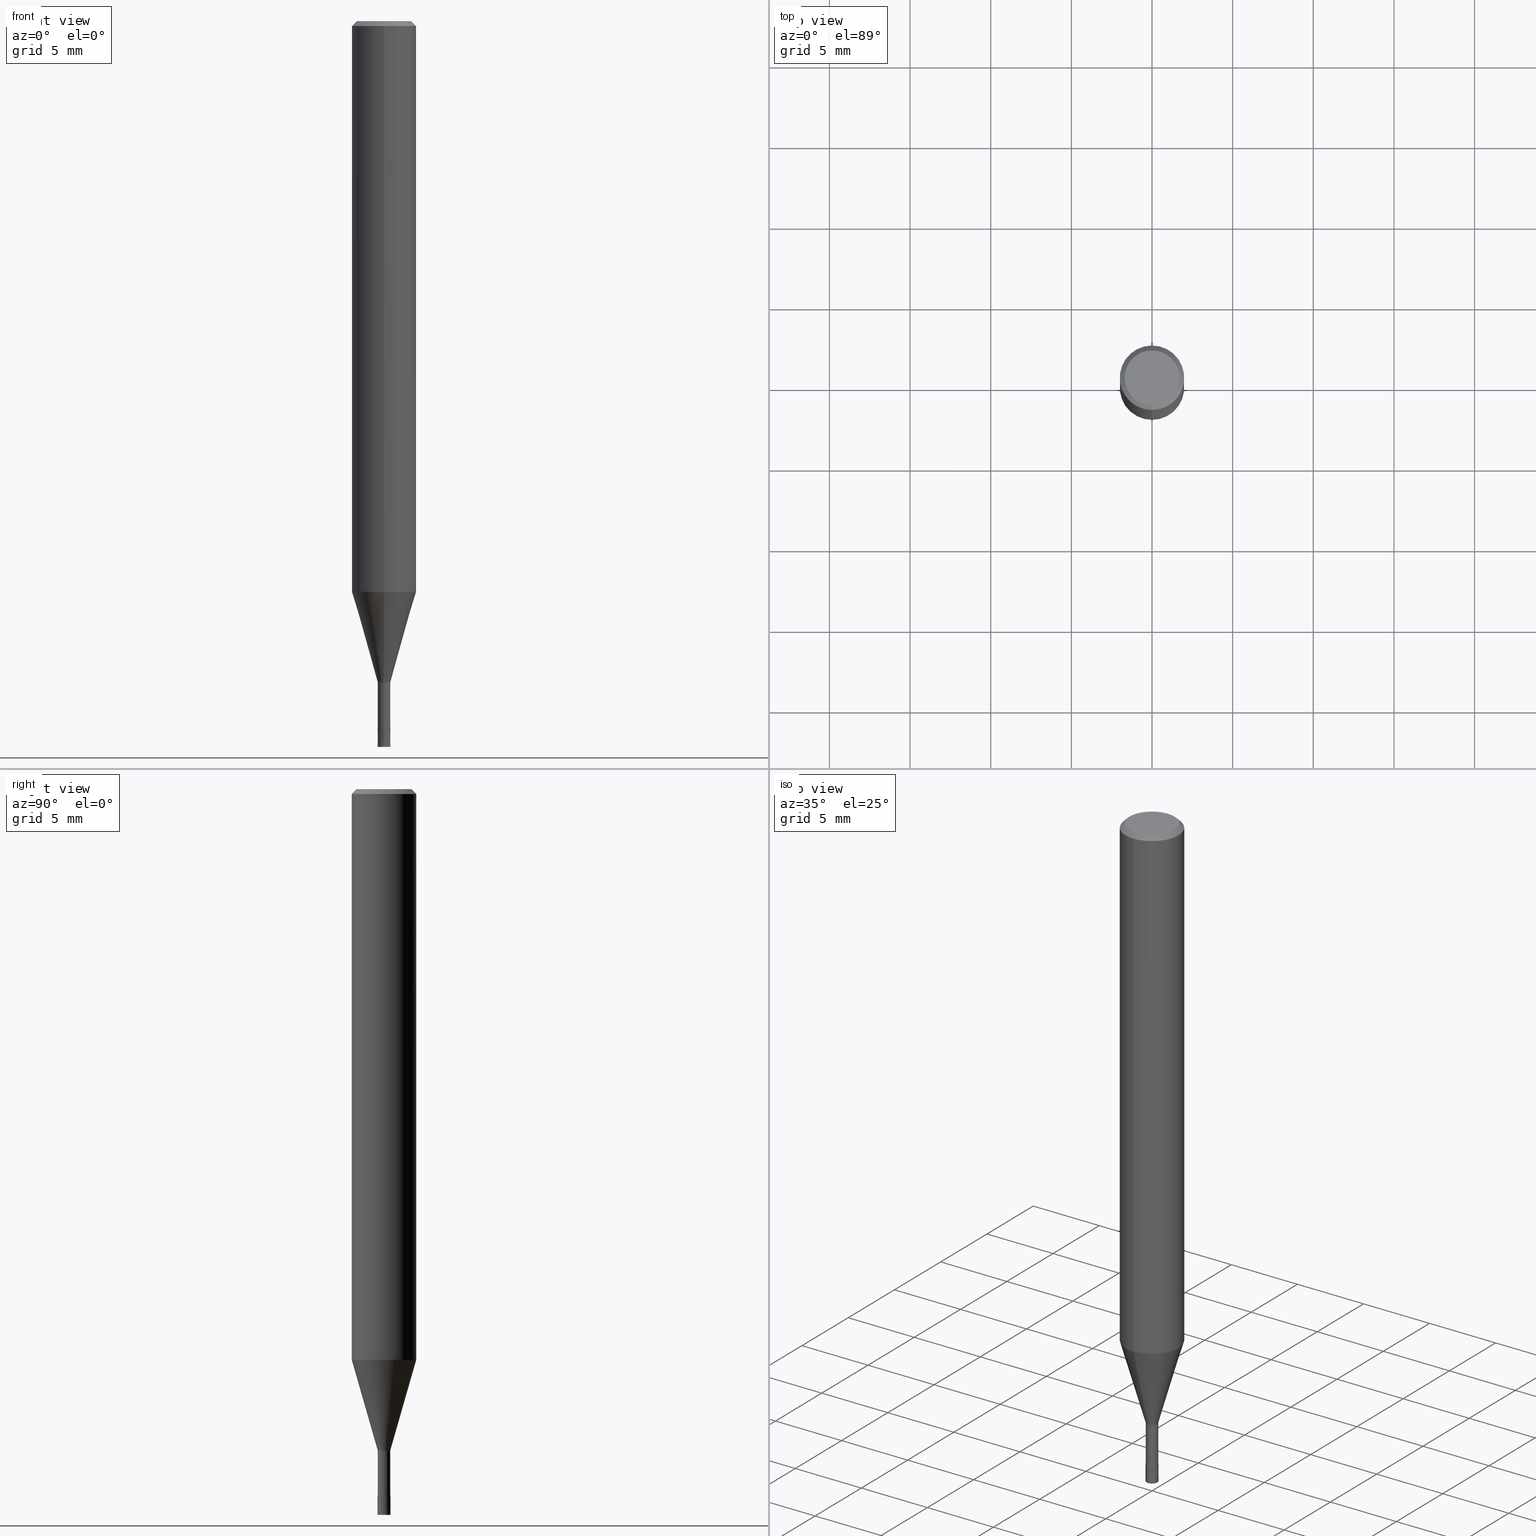
[diagram: canonical four-view strip — front | top / right | iso, engineering-drawing reading convention]
A machine part, canonical four-view strip (front | top / right | iso — engineering-drawing reading convention). The complete STEP part file that produces these views, byte-faithful:
ISO-10303-21;
HEADER;
FILE_DESCRIPTION(('no description'),'unknown implementation level');
FILE_NAME('HLS2008-040-Huellk.stp','  ',('CIMSOURCE GmbH'),('CADClick - KiM GmbH - www.kimweb.de'),'unknown preprocess','ACIS','unknown authorization');
FILE_SCHEMA(('automotive_design'));
ENDSEC;
DATA;
#1=MECHANICAL_DESIGN_GEOMETRIC_PRESENTATION_REPRESENTATION(' ',(#14,#15,#16,#17,#18,#19,#20,#21,#22,#23,#24,#25,#26,#27,#28,#29,#30,#31,#32,#33,#34,#35,#36,#37,#38,#39,#40,#41,#42,#43,#44,#45,#46,#47,#48,#49,#50,#51,#52,#53,#54,#55,#56,#57,#58,#59,#60,#61,#62,#63,#64,#65,#66,#67,#68,#69,#70,#71,#72),#10);
#2=PRODUCT_DEFINITION_CONTEXT('',#73,'design');
#3=APPLICATION_PROTOCOL_DEFINITION('INTERNATIONAL STANDARD','automotive_design',1994,#73);
#4=PRODUCT_CATEGORY_RELATIONSHIP('NONE','NONE',#74,#75);
#5=SHAPE_DEFINITION_REPRESENTATION(#76,#77);
#6=PRODUCT_DEFINITION_CONTEXT('',#78,'design');
#7=APPLICATION_PROTOCOL_DEFINITION('INTERNATIONAL STANDARD','automotive_design',1994,#78);
#8=PRODUCT_CATEGORY_RELATIONSHIP('NONE','NONE',#79,#80);
#9=SHAPE_DEFINITION_REPRESENTATION(#81,#82);
#10= (GEOMETRIC_REPRESENTATION_CONTEXT(3)GLOBAL_UNCERTAINTY_ASSIGNED_CONTEXT((#85))GLOBAL_UNIT_ASSIGNED_CONTEXT((#87,#88,#89))REPRESENTATION_CONTEXT('NONE','WORKSPACE'));
#14=STYLED_ITEM('',(#91),#92);
#15=STYLED_ITEM('',(#93),#94);
#16=STYLED_ITEM('',(#95),#96);
#17=STYLED_ITEM('',(#97),#98);
#18=STYLED_ITEM('',(#99),#100);
#19=STYLED_ITEM('',(#101),#102);
#20=STYLED_ITEM('',(#103),#104);
#21=STYLED_ITEM('',(#105),#106);
#22=STYLED_ITEM('',(#107),#108);
#23=STYLED_ITEM('',(#109),#110);
#24=STYLED_ITEM('',(#111),#112);
#25=STYLED_ITEM('',(#113),#114);
#26=STYLED_ITEM('',(#115),#116);
#27=STYLED_ITEM('',(#117),#118);
#28=STYLED_ITEM('',(#119),#120);
#29=STYLED_ITEM('',(#121),#122);
#30=STYLED_ITEM('',(#123),#124);
#31=STYLED_ITEM('',(#125),#126);
#32=STYLED_ITEM('',(#127),#128);
#33=STYLED_ITEM('',(#129),#130);
#34=STYLED_ITEM('',(#131),#132);
#35=STYLED_ITEM('',(#133),#134);
#36=STYLED_ITEM('',(#135),#136);
#37=STYLED_ITEM('',(#137),#138);
#38=STYLED_ITEM('',(#139),#140);
#39=STYLED_ITEM('',(#141),#142);
#40=STYLED_ITEM('',(#143),#144);
#41=STYLED_ITEM('',(#145),#146);
#42=STYLED_ITEM('',(#147),#148);
#43=STYLED_ITEM('',(#149),#150);
#44=STYLED_ITEM('',(#151),#152);
#45=STYLED_ITEM('',(#153),#154);
#46=STYLED_ITEM('',(#155),#156);
#47=STYLED_ITEM('',(#157),#158);
#48=STYLED_ITEM('',(#159),#160);
#49=STYLED_ITEM('',(#161),#162);
#50=STYLED_ITEM('',(#163),#164);
#51=STYLED_ITEM('',(#165),#166);
#52=STYLED_ITEM('',(#167),#168);
#53=STYLED_ITEM('',(#169),#170);
#54=STYLED_ITEM('',(#171),#172);
#55=STYLED_ITEM('',(#173),#174);
#56=STYLED_ITEM('',(#175),#176);
#57=STYLED_ITEM('',(#177),#178);
#58=STYLED_ITEM('',(#179),#180);
#59=STYLED_ITEM('',(#181),#182);
#60=STYLED_ITEM('',(#183),#184);
#61=STYLED_ITEM('',(#185),#186);
#62=STYLED_ITEM('',(#187),#188);
#63=STYLED_ITEM('',(#189),#190);
#64=STYLED_ITEM('',(#191),#192);
#65=STYLED_ITEM('',(#193),#194);
#66=STYLED_ITEM('',(#195),#196);
#67=STYLED_ITEM('',(#197),#198);
#68=STYLED_ITEM('',(#199),#200);
#69=STYLED_ITEM('',(#201),#202);
#70=STYLED_ITEM('',(#203),#204);
#71=STYLED_ITEM('',(#205),#206);
#72=STYLED_ITEM('',(#207),#208);
#73=APPLICATION_CONTEXT(' ');
#74=PRODUCT_CATEGORY('part','NONE');
#75=PRODUCT_RELATED_PRODUCT_CATEGORY('detail',' ',(#209));
#76=PRODUCT_DEFINITION_SHAPE('NONE','NONE',#210);
#77=ADVANCED_BREP_SHAPE_REPRESENTATION('1',(#130,#211),#10);
#78=APPLICATION_CONTEXT(' ');
#79=PRODUCT_CATEGORY('part','NONE');
#80=PRODUCT_RELATED_PRODUCT_CATEGORY('detail',' ',(#212));
#81=PRODUCT_DEFINITION_SHAPE('NONE','NONE',#213);
#82=ADVANCED_BREP_SHAPE_REPRESENTATION('2',(#160,#214),#10);
#85=UNCERTAINTY_MEASURE_WITH_UNIT(LENGTH_MEASURE(1.0E-006),#87,'','');
#87= (CONVERSION_BASED_UNIT('MILLIMETRE',#217)LENGTH_UNIT()NAMED_UNIT(#220));
#88= (NAMED_UNIT(#222)PLANE_ANGLE_UNIT()SI_UNIT($,.RADIAN.));
#89= (NAMED_UNIT(#222)SOLID_ANGLE_UNIT()SI_UNIT($,.STERADIAN.));
#91=PRESENTATION_STYLE_ASSIGNMENT((#228));
#92=EDGE_CURVE('',#194,#108,#229,.T.);
#93=PRESENTATION_STYLE_ASSIGNMENT((#230));
#94=VERTEX_POINT('',#231);
#95=PRESENTATION_STYLE_ASSIGNMENT((#232));
#96=EDGE_CURVE('',#164,#134,#233,.T.);
#97=PRESENTATION_STYLE_ASSIGNMENT((#234));
#98=ADVANCED_FACE('',(#235),#236,.T.);
#99=PRESENTATION_STYLE_ASSIGNMENT((#237));
#100=ADVANCED_FACE('',(#238),#239,.T.);
#101=PRESENTATION_STYLE_ASSIGNMENT((#240));
#102=VERTEX_POINT('',#241);
#103=PRESENTATION_STYLE_ASSIGNMENT((#242));
#104=VERTEX_POINT('',#243);
#105=PRESENTATION_STYLE_ASSIGNMENT((#244));
#106=EDGE_CURVE('',#112,#94,#245,.T.);
#107=PRESENTATION_STYLE_ASSIGNMENT((#246));
#108=VERTEX_POINT('',#247);
#109=PRESENTATION_STYLE_ASSIGNMENT((#248));
#110=ADVANCED_FACE('',(#249),#250,.T.);
#111=PRESENTATION_STYLE_ASSIGNMENT((#251));
#112=VERTEX_POINT('',#252);
#113=PRESENTATION_STYLE_ASSIGNMENT((#253));
#114=EDGE_CURVE('',#132,#146,#254,.T.);
#115=PRESENTATION_STYLE_ASSIGNMENT((#255));
#116=ADVANCED_FACE('',(#256),#257,.T.);
#117=PRESENTATION_STYLE_ASSIGNMENT((#258));
#118=EDGE_CURVE('',#166,#182,#259,.T.);
#119=PRESENTATION_STYLE_ASSIGNMENT((#260));
#120=EDGE_CURVE('',#94,#134,#261,.T.);
#121=PRESENTATION_STYLE_ASSIGNMENT((#262));
#122=ADVANCED_FACE('',(#263),#264,.T.);
#123=PRESENTATION_STYLE_ASSIGNMENT((#265));
#124=ADVANCED_FACE('',(#266),#267,.T.);
#125=PRESENTATION_STYLE_ASSIGNMENT((#268));
#126=EDGE_CURVE('',#102,#108,#269,.T.);
#127=PRESENTATION_STYLE_ASSIGNMENT((#270));
#128=ADVANCED_FACE('',(#271),#272,.T.);
#129=PRESENTATION_STYLE_ASSIGNMENT((#273));
#130=MANIFOLD_SOLID_BREP('1',#274);
#131=PRESENTATION_STYLE_ASSIGNMENT((#275));
#132=VERTEX_POINT('',#276);
#133=PRESENTATION_STYLE_ASSIGNMENT((#277));
#134=VERTEX_POINT('',#278);
#135=PRESENTATION_STYLE_ASSIGNMENT((#279));
#136=EDGE_CURVE('',#94,#112,#280,.T.);
#137=PRESENTATION_STYLE_ASSIGNMENT((#281));
#138=VERTEX_POINT('',#282);
#139=PRESENTATION_STYLE_ASSIGNMENT((#283));
#140=EDGE_CURVE('',#166,#102,#284,.T.);
#141=PRESENTATION_STYLE_ASSIGNMENT((#285));
#142=VERTEX_POINT('',#286);
#143=PRESENTATION_STYLE_ASSIGNMENT((#287));
#144=ADVANCED_FACE('',(#288),#289,.T.);
#145=PRESENTATION_STYLE_ASSIGNMENT((#290));
#146=VERTEX_POINT('',#291);
#147=PRESENTATION_STYLE_ASSIGNMENT((#292));
#148=EDGE_CURVE('',#204,#146,#293,.T.);
#149=PRESENTATION_STYLE_ASSIGNMENT((#294));
#150=EDGE_CURVE('',#194,#104,#295,.T.);
#151=PRESENTATION_STYLE_ASSIGNMENT((#296));
#152=ADVANCED_FACE('',(#297,#298),#299,.T.);
#153=PRESENTATION_STYLE_ASSIGNMENT((#300));
#154=ADVANCED_FACE('',(#301),#302,.T.);
#155=PRESENTATION_STYLE_ASSIGNMENT((#303));
#156=EDGE_CURVE('',#134,#164,#304,.T.);
#157=PRESENTATION_STYLE_ASSIGNMENT((#305));
#158=ADVANCED_FACE('',(#306),#307,.T.);
#159=PRESENTATION_STYLE_ASSIGNMENT((#308));
#160=MANIFOLD_SOLID_BREP('2',#309);
#161=PRESENTATION_STYLE_ASSIGNMENT((#310));
#162=EDGE_CURVE('',#200,#132,#311,.T.);
#163=PRESENTATION_STYLE_ASSIGNMENT((#312));
#164=VERTEX_POINT('',#313);
#165=PRESENTATION_STYLE_ASSIGNMENT((#314));
#166=VERTEX_POINT('',#315);
#167=PRESENTATION_STYLE_ASSIGNMENT((#316));
#168=EDGE_CURVE('',#108,#194,#317,.T.);
#169=PRESENTATION_STYLE_ASSIGNMENT((#318));
#170=ADVANCED_FACE('',(#319),#320,.T.);
#171=PRESENTATION_STYLE_ASSIGNMENT((#321));
#172=EDGE_CURVE('',#138,#142,#322,.T.);
#173=PRESENTATION_STYLE_ASSIGNMENT((#323));
#174=EDGE_CURVE('',#146,#204,#324,.T.);
#175=PRESENTATION_STYLE_ASSIGNMENT((#325));
#176=EDGE_CURVE('',#102,#104,#326,.T.);
#177=PRESENTATION_STYLE_ASSIGNMENT((#327));
#178=EDGE_CURVE('',#104,#102,#328,.T.);
#179=PRESENTATION_STYLE_ASSIGNMENT((#329));
#180=ADVANCED_FACE('',(#330),#331,.T.);
#181=PRESENTATION_STYLE_ASSIGNMENT((#332));
#182=VERTEX_POINT('',#333);
#183=PRESENTATION_STYLE_ASSIGNMENT((#334));
#184=EDGE_CURVE('',#112,#142,#335,.T.);
#185=PRESENTATION_STYLE_ASSIGNMENT((#336));
#186=EDGE_CURVE('',#104,#182,#337,.T.);
#187=PRESENTATION_STYLE_ASSIGNMENT((#338));
#188=EDGE_CURVE('',#138,#94,#339,.T.);
#189=PRESENTATION_STYLE_ASSIGNMENT((#340));
#190=ADVANCED_FACE('',(#341),#342,.T.);
#191=PRESENTATION_STYLE_ASSIGNMENT((#343));
#192=EDGE_CURVE('',#164,#112,#344,.T.);
#193=PRESENTATION_STYLE_ASSIGNMENT((#345));
#194=VERTEX_POINT('',#346);
#195=PRESENTATION_STYLE_ASSIGNMENT((#347));
#196=EDGE_CURVE('',#142,#138,#348,.T.);
#197=PRESENTATION_STYLE_ASSIGNMENT((#349));
#198=EDGE_CURVE('',#204,#200,#350,.T.);
#199=PRESENTATION_STYLE_ASSIGNMENT((#351));
#200=VERTEX_POINT('',#352);
#201=PRESENTATION_STYLE_ASSIGNMENT((#353));
#202=EDGE_CURVE('',#182,#166,#354,.T.);
#203=PRESENTATION_STYLE_ASSIGNMENT((#355));
#204=VERTEX_POINT('',#356);
#205=PRESENTATION_STYLE_ASSIGNMENT((#357));
#206=ADVANCED_FACE('',(#358),#359,.T.);
#207=PRESENTATION_STYLE_ASSIGNMENT((#360));
#208=EDGE_CURVE('',#132,#200,#361,.T.);
#209=PRODUCT('1','1','PART-1-DESC',(#362));
#210=PRODUCT_DEFINITION('NONE','NONE',#363,#2);
#211=AXIS2_PLACEMENT_3D('',#364,#365,#366);
#212=PRODUCT('2','2','PART-2-DESC',(#367));
#213=PRODUCT_DEFINITION('NONE','NONE',#368,#6);
#214=AXIS2_PLACEMENT_3D('',#369,#370,#371);
#217=LENGTH_MEASURE_WITH_UNIT(LENGTH_MEASURE(1.0),#372);
#220=DIMENSIONAL_EXPONENTS(1.0,0.0,0.0,0.0,0.0,0.0,0.0);
#222=DIMENSIONAL_EXPONENTS(0.0,0.0,0.0,0.0,0.0,0.0,0.0);
#228=CURVE_STYLE('',#373,POSITIVE_LENGTH_MEASURE(1.0E-006),#374);
#229=CIRCLE('',#375,0.38995);
#230=POINT_STYLE(' ',#376,POSITIVE_LENGTH_MEASURE(1.0E-006),#377);
#231=CARTESIAN_POINT('',(0.0,2.0,-0.299999999999997));
#232=CURVE_STYLE('',#378,POSITIVE_LENGTH_MEASURE(1.0E-006),#379);
#233=CIRCLE('',#380,2.0);
#234=SURFACE_STYLE_USAGE(.BOTH.,#381);
#235=FACE_OUTER_BOUND('',#382,.T.);
#236=CONICAL_SURFACE('',#383,0.39995,8.33333331404692E-005);
#237=SURFACE_STYLE_USAGE(.BOTH.,#384);
#238=FACE_OUTER_BOUND('',#385,.T.);
#239=PLANE('',#386);
#240=POINT_STYLE(' ',#387,POSITIVE_LENGTH_MEASURE(1.0E-006),#388);
#241=CARTESIAN_POINT('',(0.0,0.38995,-41.0));
#242=POINT_STYLE(' ',#389,POSITIVE_LENGTH_MEASURE(1.0E-006),#390);
#243=CARTESIAN_POINT('',(4.77535247673036E-017,-0.38995,-41.0));
#244=CURVE_STYLE('',#391,POSITIVE_LENGTH_MEASURE(1.0E-006),#392);
#245=CIRCLE('',#393,2.0);
#246=POINT_STYLE(' ',#394,POSITIVE_LENGTH_MEASURE(1.0E-006),#395);
#247=CARTESIAN_POINT('',(0.0,0.38995,-43.8));
#248=SURFACE_STYLE_USAGE(.BOTH.,#396);
#249=FACE_OUTER_BOUND('',#397,.T.);
#250=CYLINDRICAL_SURFACE('',#398,2.0);
#251=POINT_STYLE(' ',#399,POSITIVE_LENGTH_MEASURE(1.0E-006),#400);
#252=CARTESIAN_POINT('',(2.44921270764475E-016,-2.0,-0.299999999999997));
#253=CURVE_STYLE('',#401,POSITIVE_LENGTH_MEASURE(1.0E-006),#402);
#254=LINE('',#403,#404);
#255=SURFACE_STYLE_USAGE(.BOTH.,#405);
#256=FACE_OUTER_BOUND('',#406,.T.);
#257=CONICAL_SURFACE('',#407,0.39995,8.33333331404692E-005);
#258=CURVE_STYLE('',#408,POSITIVE_LENGTH_MEASURE(1.0E-006),#409);
#259=CIRCLE('',#410,1.99995);
#260=CURVE_STYLE('',#411,POSITIVE_LENGTH_MEASURE(1.0E-006),#412);
#261=LINE('',#413,#414);
#262=SURFACE_STYLE_USAGE(.BOTH.,#415);
#263=FACE_OUTER_BOUND('',#416,.T.);
#264=CONICAL_SURFACE('',#417,1.19495,0.279240281890545);
#265=SURFACE_STYLE_USAGE(.BOTH.,#418);
#266=FACE_OUTER_BOUND('',#419,.T.);
#267=PLANE('',#420);
#268=CURVE_STYLE('',#421,POSITIVE_LENGTH_MEASURE(1.0E-006),#422);
#269=LINE('',#423,#424);
#270=SURFACE_STYLE_USAGE(.BOTH.,#425);
#271=FACE_OUTER_BOUND('',#426,.T.);
#272=CONICAL_SURFACE('',#427,1.85,0.785398163397453);
#273=SURFACE_STYLE_USAGE(.BOTH.,#428);
#274=CLOSED_SHELL('',(#144,#154,#206,#128,#152,#100,#190,#110,#122,#170,#180));
#275=POINT_STYLE(' ',#429,POSITIVE_LENGTH_MEASURE(1.0E-006),#430);
#276=CARTESIAN_POINT('',(0.0,0.3999,-43.8));
#277=POINT_STYLE(' ',#431,POSITIVE_LENGTH_MEASURE(1.0E-006),#432);
#278=CARTESIAN_POINT('',(0.0,2.0,-35.385));
#279=CURVE_STYLE('',#433,POSITIVE_LENGTH_MEASURE(1.0E-006),#434);
#280=CIRCLE('',#435,2.0);
#281=POINT_STYLE(' ',#436,POSITIVE_LENGTH_MEASURE(1.0E-006),#437);
#282=CARTESIAN_POINT('',(0.0,1.7,0.0));
#283=CURVE_STYLE('',#438,POSITIVE_LENGTH_MEASURE(1.0E-006),#439);
#284=LINE('',#440,#441);
#285=POINT_STYLE(' ',#442,POSITIVE_LENGTH_MEASURE(1.0E-006),#443);
#286=CARTESIAN_POINT('',(2.08183080149804E-016,-1.7,0.0));
#287=SURFACE_STYLE_USAGE(.BOTH.,#444);
#288=FACE_OUTER_BOUND('',#445,.T.);
#289=CYLINDRICAL_SURFACE('',#446,0.38995);
#290=POINT_STYLE(' ',#447,POSITIVE_LENGTH_MEASURE(1.0E-006),#448);
#291=CARTESIAN_POINT('',(0.0,0.4,-45.0));
#292=CURVE_STYLE('',#449,POSITIVE_LENGTH_MEASURE(1.0E-006),#450);
#293=CIRCLE('',#451,0.4);
#294=CURVE_STYLE('',#452,POSITIVE_LENGTH_MEASURE(1.0E-006),#453);
#295=LINE('',#454,#455);
#296=SURFACE_STYLE_USAGE(.BOTH.,#456);
#297=FACE_OUTER_BOUND('',#457,.T.);
#298=FACE_BOUND('',#458,.T.);
#299=PLANE('',#459);
#300=SURFACE_STYLE_USAGE(.BOTH.,#460);
#301=FACE_OUTER_BOUND('',#461,.T.);
#302=CONICAL_SURFACE('',#462,1.19495,0.279240281890545);
#303=CURVE_STYLE('',#463,POSITIVE_LENGTH_MEASURE(1.0E-006),#464);
#304=CIRCLE('',#465,2.0);
#305=SURFACE_STYLE_USAGE(.BOTH.,#466);
#306=FACE_OUTER_BOUND('',#467,.T.);
#307=PLANE('',#468);
#308=SURFACE_STYLE_USAGE(.BOTH.,#469);
#309=CLOSED_SHELL('',(#98,#124,#116,#158));
#310=CURVE_STYLE('',#470,POSITIVE_LENGTH_MEASURE(1.0E-006),#471);
#311=CIRCLE('',#472,0.3999);
#312=POINT_STYLE(' ',#473,POSITIVE_LENGTH_MEASURE(1.0E-006),#474);
#313=CARTESIAN_POINT('',(2.44921270764475E-016,-2.0,-35.385));
#314=POINT_STYLE(' ',#475,POSITIVE_LENGTH_MEASURE(1.0E-006),#476);
#315=CARTESIAN_POINT('',(0.0,1.99995,-35.385));
#316=CURVE_STYLE('',#477,POSITIVE_LENGTH_MEASURE(1.0E-006),#478);
#317=CIRCLE('',#479,0.38995);
#318=SURFACE_STYLE_USAGE(.BOTH.,#480);
#319=FACE_OUTER_BOUND('',#481,.T.);
#320=CYLINDRICAL_SURFACE('',#482,0.38995);
#321=CURVE_STYLE('',#483,POSITIVE_LENGTH_MEASURE(1.0E-006),#484);
#322=CIRCLE('',#485,1.7);
#323=CURVE_STYLE('',#486,POSITIVE_LENGTH_MEASURE(1.0E-006),#487);
#324=CIRCLE('',#488,0.4);
#325=CURVE_STYLE('',#489,POSITIVE_LENGTH_MEASURE(1.0E-006),#490);
#326=CIRCLE('',#491,0.38995);
#327=CURVE_STYLE('',#492,POSITIVE_LENGTH_MEASURE(1.0E-006),#493);
#328=CIRCLE('',#494,0.38995);
#329=SURFACE_STYLE_USAGE(.BOTH.,#495);
#330=FACE_OUTER_BOUND('',#496,.T.);
#331=PLANE('',#497);
#332=POINT_STYLE(' ',#498,POSITIVE_LENGTH_MEASURE(1.0E-006),#499);
#333=CARTESIAN_POINT('',(2.44915147732706E-016,-1.99995,-35.385));
#334=CURVE_STYLE('',#500,POSITIVE_LENGTH_MEASURE(1.0E-006),#501);
#335=LINE('',#502,#503);
#336=CURVE_STYLE('',#504,POSITIVE_LENGTH_MEASURE(1.0E-006),#505);
#337=LINE('',#506,#507);
#338=CURVE_STYLE('',#508,POSITIVE_LENGTH_MEASURE(1.0E-006),#509);
#339=LINE('',#510,#511);
#340=SURFACE_STYLE_USAGE(.BOTH.,#512);
#341=FACE_OUTER_BOUND('',#513,.T.);
#342=CONICAL_SURFACE('',#514,1.85,0.785398163397453);
#343=CURVE_STYLE('',#515,POSITIVE_LENGTH_MEASURE(1.0E-006),#516);
#344=LINE('',#517,#518);
#345=POINT_STYLE(' ',#519,POSITIVE_LENGTH_MEASURE(1.0E-006),#520);
#346=CARTESIAN_POINT('',(4.77535247673036E-017,-0.38995,-43.8));
#347=CURVE_STYLE('',#521,POSITIVE_LENGTH_MEASURE(1.0E-006),#522);
#348=CIRCLE('',#523,1.7);
#349=CURVE_STYLE('',#524,POSITIVE_LENGTH_MEASURE(1.0E-006),#525);
#350=LINE('',#526,#527);
#351=POINT_STYLE(' ',#528,POSITIVE_LENGTH_MEASURE(1.0E-006),#529);
#352=CARTESIAN_POINT('',(4.89720080893569E-017,-0.3999,-43.8));
#353=CURVE_STYLE('',#530,POSITIVE_LENGTH_MEASURE(1.0E-006),#531);
#354=CIRCLE('',#532,1.99995);
#355=POINT_STYLE(' ',#533,POSITIVE_LENGTH_MEASURE(1.0E-006),#534);
#356=CARTESIAN_POINT('',(4.89842541528951E-017,-0.4,-45.0));
#357=SURFACE_STYLE_USAGE(.BOTH.,#535);
#358=FACE_OUTER_BOUND('',#536,.T.);
#359=CYLINDRICAL_SURFACE('',#537,2.0);
#360=CURVE_STYLE('',#538,POSITIVE_LENGTH_MEASURE(1.0E-006),#539);
#361=CIRCLE('',#540,0.3999);
#362=PRODUCT_CONTEXT('',#73,'mechanical');
#363=PRODUCT_DEFINITION_FORMATION_WITH_SPECIFIED_SOURCE(' ','NONE',#209,.NOT_KNOWN.);
#364=CARTESIAN_POINT('',(0.0,0.0,0.0));
#365=DIRECTION('',(0.0,0.0,1.0));
#366=DIRECTION('',(1.0,0.0,0.0));
#367=PRODUCT_CONTEXT('',#78,'mechanical');
#368=PRODUCT_DEFINITION_FORMATION_WITH_SPECIFIED_SOURCE(' ','NONE',#212,.NOT_KNOWN.);
#369=CARTESIAN_POINT('',(0.0,0.0,0.0));
#370=DIRECTION('',(0.0,0.0,1.0));
#371=DIRECTION('',(1.0,0.0,0.0));
#372= (NAMED_UNIT(#220)LENGTH_UNIT()SI_UNIT(.MILLI.,.METRE.));
#373=DRAUGHTING_PRE_DEFINED_CURVE_FONT('continuous');
#374=COLOUR_RGB('',0.498039215803146,0.498039215803146,0.498039215803146);
#375=AXIS2_PLACEMENT_3D('',#542,#543,#544);
#376=PRE_DEFINED_MARKER('');
#377=COLOUR_RGB('',0.498039215803146,0.498039215803146,0.498039215803146);
#378=DRAUGHTING_PRE_DEFINED_CURVE_FONT('continuous');
#379=COLOUR_RGB('',0.498039215803146,0.498039215803146,0.498039215803146);
#380=AXIS2_PLACEMENT_3D('',#545,#546,#547);
#381=SURFACE_SIDE_STYLE('',(#548));
#382=EDGE_LOOP('',(#549,#550,#551,#552));
#383=AXIS2_PLACEMENT_3D('',#553,#554,#555);
#384=SURFACE_SIDE_STYLE('',(#556));
#385=EDGE_LOOP('',(#557,#558));
#386=AXIS2_PLACEMENT_3D('',#559,#560,#561);
#387=PRE_DEFINED_MARKER('');
#388=COLOUR_RGB('',0.498039215803146,0.498039215803146,0.498039215803146);
#389=PRE_DEFINED_MARKER('');
#390=COLOUR_RGB('',0.498039215803146,0.498039215803146,0.498039215803146);
#391=DRAUGHTING_PRE_DEFINED_CURVE_FONT('continuous');
#392=COLOUR_RGB('',0.498039215803146,0.498039215803146,0.498039215803146);
#393=AXIS2_PLACEMENT_3D('',#562,#563,#564);
#394=PRE_DEFINED_MARKER('');
#395=COLOUR_RGB('',0.498039215803146,0.498039215803146,0.498039215803146);
#396=SURFACE_SIDE_STYLE('',(#565));
#397=EDGE_LOOP('',(#566,#567,#568,#569));
#398=AXIS2_PLACEMENT_3D('',#570,#571,#572);
#399=PRE_DEFINED_MARKER('');
#400=COLOUR_RGB('',0.498039215803146,0.498039215803146,0.498039215803146);
#401=DRAUGHTING_PRE_DEFINED_CURVE_FONT('continuous');
#402=COLOUR_RGB('',0.800000011920929,0.800000011920929,0.800000011920929);
#403=CARTESIAN_POINT('',(-4.8978131121126E-017,0.39995,-44.4));
#404=VECTOR('',#573,1.0);
#405=SURFACE_SIDE_STYLE('',(#574));
#406=EDGE_LOOP('',(#575,#576,#577,#578));
#407=AXIS2_PLACEMENT_3D('',#579,#580,#581);
#408=DRAUGHTING_PRE_DEFINED_CURVE_FONT('continuous');
#409=COLOUR_RGB('',0.498039215803146,0.498039215803146,0.498039215803146);
#410=AXIS2_PLACEMENT_3D('',#582,#583,#584);
#411=DRAUGHTING_PRE_DEFINED_CURVE_FONT('continuous');
#412=COLOUR_RGB('',0.498039215803146,0.498039215803146,0.498039215803146);
#413=CARTESIAN_POINT('',(-2.44921270764475E-016,2.0,-17.8425));
#414=VECTOR('',#585,1.0);
#415=SURFACE_SIDE_STYLE('',(#586));
#416=EDGE_LOOP('',(#587,#588,#589,#590));
#417=AXIS2_PLACEMENT_3D('',#591,#592,#593);
#418=SURFACE_SIDE_STYLE('',(#594));
#419=EDGE_LOOP('',(#595,#596));
#420=AXIS2_PLACEMENT_3D('',#597,#598,#599);
#421=DRAUGHTING_PRE_DEFINED_CURVE_FONT('continuous');
#422=COLOUR_RGB('',0.498039215803146,0.498039215803146,0.498039215803146);
#423=CARTESIAN_POINT('',(-4.77535247673036E-017,0.38995,-42.4));
#424=VECTOR('',#600,1.0);
#425=SURFACE_SIDE_STYLE('',(#601));
#426=EDGE_LOOP('',(#602,#603,#604,#605));
#427=AXIS2_PLACEMENT_3D('',#606,#607,#608);
#428=SURFACE_SIDE_STYLE('',(#609));
#429=PRE_DEFINED_MARKER('');
#430=COLOUR_RGB('',0.800000011920929,0.800000011920929,0.800000011920929);
#431=PRE_DEFINED_MARKER('');
#432=COLOUR_RGB('',0.498039215803146,0.498039215803146,0.498039215803146);
#433=DRAUGHTING_PRE_DEFINED_CURVE_FONT('continuous');
#434=COLOUR_RGB('',0.498039215803146,0.498039215803146,0.498039215803146);
#435=AXIS2_PLACEMENT_3D('',#610,#611,#612);
#436=PRE_DEFINED_MARKER('');
#437=COLOUR_RGB('',0.498039215803146,0.498039215803146,0.498039215803146);
#438=DRAUGHTING_PRE_DEFINED_CURVE_FONT('continuous');
#439=COLOUR_RGB('',0.498039215803146,0.498039215803146,0.498039215803146);
#440=CARTESIAN_POINT('',(-1.46334336250005E-016,1.19495,-38.1925));
#441=VECTOR('',#613,1.0);
#442=PRE_DEFINED_MARKER('');
#443=COLOUR_RGB('',0.498039215803146,0.498039215803146,0.498039215803146);
#444=SURFACE_SIDE_STYLE('',(#614));
#445=EDGE_LOOP('',(#615,#616,#617,#618));
#446=AXIS2_PLACEMENT_3D('',#619,#620,#621);
#447=PRE_DEFINED_MARKER('');
#448=COLOUR_RGB('',0.800000011920929,0.800000011920929,0.800000011920929);
#449=DRAUGHTING_PRE_DEFINED_CURVE_FONT('continuous');
#450=COLOUR_RGB('',0.800000011920929,0.800000011920929,0.800000011920929);
#451=AXIS2_PLACEMENT_3D('',#622,#623,#624);
#452=DRAUGHTING_PRE_DEFINED_CURVE_FONT('continuous');
#453=COLOUR_RGB('',0.498039215803146,0.498039215803146,0.498039215803146);
#454=CARTESIAN_POINT('',(4.77535247673036E-017,-0.38995,-42.4));
#455=VECTOR('',#625,1.0);
#456=SURFACE_SIDE_STYLE('',(#626));
#457=EDGE_LOOP('',(#627,#628));
#458=EDGE_LOOP('',(#629,#630));
#459=AXIS2_PLACEMENT_3D('',#631,#632,#633);
#460=SURFACE_SIDE_STYLE('',(#634));
#461=EDGE_LOOP('',(#635,#636,#637,#638));
#462=AXIS2_PLACEMENT_3D('',#639,#640,#641);
#463=DRAUGHTING_PRE_DEFINED_CURVE_FONT('continuous');
#464=COLOUR_RGB('',0.498039215803146,0.498039215803146,0.498039215803146);
#465=AXIS2_PLACEMENT_3D('',#642,#643,#644);
#466=SURFACE_SIDE_STYLE('',(#645));
#467=EDGE_LOOP('',(#646,#647));
#468=AXIS2_PLACEMENT_3D('',#648,#649,#650);
#469=SURFACE_SIDE_STYLE('',(#651));
#470=DRAUGHTING_PRE_DEFINED_CURVE_FONT('continuous');
#471=COLOUR_RGB('',0.800000011920929,0.800000011920929,0.800000011920929);
#472=AXIS2_PLACEMENT_3D('',#652,#653,#654);
#473=PRE_DEFINED_MARKER('');
#474=COLOUR_RGB('',0.498039215803146,0.498039215803146,0.498039215803146);
#475=PRE_DEFINED_MARKER('');
#476=COLOUR_RGB('',0.498039215803146,0.498039215803146,0.498039215803146);
#477=DRAUGHTING_PRE_DEFINED_CURVE_FONT('continuous');
#478=COLOUR_RGB('',0.498039215803146,0.498039215803146,0.498039215803146);
#479=AXIS2_PLACEMENT_3D('',#655,#656,#657);
#480=SURFACE_SIDE_STYLE('',(#658));
#481=EDGE_LOOP('',(#659,#660,#661,#662));
#482=AXIS2_PLACEMENT_3D('',#663,#664,#665);
#483=DRAUGHTING_PRE_DEFINED_CURVE_FONT('continuous');
#484=COLOUR_RGB('',0.498039215803146,0.498039215803146,0.498039215803146);
#485=AXIS2_PLACEMENT_3D('',#666,#667,#668);
#486=DRAUGHTING_PRE_DEFINED_CURVE_FONT('continuous');
#487=COLOUR_RGB('',0.800000011920929,0.800000011920929,0.800000011920929);
#488=AXIS2_PLACEMENT_3D('',#669,#670,#671);
#489=DRAUGHTING_PRE_DEFINED_CURVE_FONT('continuous');
#490=COLOUR_RGB('',0.498039215803146,0.498039215803146,0.498039215803146);
#491=AXIS2_PLACEMENT_3D('',#672,#673,#674);
#492=DRAUGHTING_PRE_DEFINED_CURVE_FONT('continuous');
#493=COLOUR_RGB('',0.498039215803146,0.498039215803146,0.498039215803146);
#494=AXIS2_PLACEMENT_3D('',#675,#676,#677);
#495=SURFACE_SIDE_STYLE('',(#678));
#496=EDGE_LOOP('',(#679,#680));
#497=AXIS2_PLACEMENT_3D('',#681,#682,#683);
#498=PRE_DEFINED_MARKER('');
#499=COLOUR_RGB('',0.498039215803146,0.498039215803146,0.498039215803146);
#500=DRAUGHTING_PRE_DEFINED_CURVE_FONT('continuous');
#501=COLOUR_RGB('',0.498039215803146,0.498039215803146,0.498039215803146);
#502=CARTESIAN_POINT('',(2.2655217545714E-016,-1.85,-0.149999999999999));
#503=VECTOR('',#684,1.0);
#504=DRAUGHTING_PRE_DEFINED_CURVE_FONT('continuous');
#505=COLOUR_RGB('',0.498039215803146,0.498039215803146,0.498039215803146);
#506=CARTESIAN_POINT('',(1.46334336250005E-016,-1.19495,-38.1925));
#507=VECTOR('',#685,1.0);
#508=DRAUGHTING_PRE_DEFINED_CURVE_FONT('continuous');
#509=COLOUR_RGB('',0.498039215803146,0.498039215803146,0.498039215803146);
#510=CARTESIAN_POINT('',(-2.2655217545714E-016,1.85,-0.149999999999999));
#511=VECTOR('',#686,1.0);
#512=SURFACE_SIDE_STYLE('',(#687));
#513=EDGE_LOOP('',(#688,#689,#690,#691));
#514=AXIS2_PLACEMENT_3D('',#692,#693,#694);
#515=DRAUGHTING_PRE_DEFINED_CURVE_FONT('continuous');
#516=COLOUR_RGB('',0.498039215803146,0.498039215803146,0.498039215803146);
#517=CARTESIAN_POINT('',(2.44921270764475E-016,-2.0,-17.8425));
#518=VECTOR('',#695,1.0);
#519=PRE_DEFINED_MARKER('');
#520=COLOUR_RGB('',0.498039215803146,0.498039215803146,0.498039215803146);
#521=DRAUGHTING_PRE_DEFINED_CURVE_FONT('continuous');
#522=COLOUR_RGB('',0.498039215803146,0.498039215803146,0.498039215803146);
#523=AXIS2_PLACEMENT_3D('',#696,#697,#698);
#524=DRAUGHTING_PRE_DEFINED_CURVE_FONT('continuous');
#525=COLOUR_RGB('',0.800000011920929,0.800000011920929,0.800000011920929);
#526=CARTESIAN_POINT('',(4.8978131121126E-017,-0.39995,-44.4));
#527=VECTOR('',#699,1.0);
#528=PRE_DEFINED_MARKER('');
#529=COLOUR_RGB('',0.800000011920929,0.800000011920929,0.800000011920929);
#530=DRAUGHTING_PRE_DEFINED_CURVE_FONT('continuous');
#531=COLOUR_RGB('',0.498039215803146,0.498039215803146,0.498039215803146);
#532=AXIS2_PLACEMENT_3D('',#700,#701,#702);
#533=PRE_DEFINED_MARKER('');
#534=COLOUR_RGB('',0.800000011920929,0.800000011920929,0.800000011920929);
#535=SURFACE_SIDE_STYLE('',(#703));
#536=EDGE_LOOP('',(#704,#705,#706,#707));
#537=AXIS2_PLACEMENT_3D('',#708,#709,#710);
#538=DRAUGHTING_PRE_DEFINED_CURVE_FONT('continuous');
#539=COLOUR_RGB('',0.800000011920929,0.800000011920929,0.800000011920929);
#540=AXIS2_PLACEMENT_3D('',#711,#712,#713);
#542=CARTESIAN_POINT('',(0.0,0.0,-43.8));
#543=DIRECTION('',(0.0,0.0,-1.0));
#544=DIRECTION('',(0.0,1.0,0.0));
#545=CARTESIAN_POINT('',(0.0,0.0,-35.385));
#546=DIRECTION('',(0.0,0.0,-1.0));
#547=DIRECTION('',(0.0,1.0,0.0));
#548=SURFACE_STYLE_FILL_AREA(#714);
#549=ORIENTED_EDGE('',*,*,#114,.F.);
#550=ORIENTED_EDGE('',*,*,#208,.T.);
#551=ORIENTED_EDGE('',*,*,#198,.F.);
#552=ORIENTED_EDGE('',*,*,#174,.F.);
#553=CARTESIAN_POINT('',(0.0,0.0,-44.4));
#554=DIRECTION('',(0.0,-0.0,-1.0));
#555=DIRECTION('',(0.0,1.0,0.0));
#556=SURFACE_STYLE_FILL_AREA(#715);
#557=ORIENTED_EDGE('',*,*,#172,.F.);
#558=ORIENTED_EDGE('',*,*,#196,.F.);
#559=CARTESIAN_POINT('',(0.0,0.85,0.0));
#560=DIRECTION('',(-0.0,0.0,1.0));
#561=DIRECTION('',(0.0,-1.0,0.0));
#562=CARTESIAN_POINT('',(0.0,0.0,-0.299999999999997));
#563=DIRECTION('',(0.0,0.0,-1.0));
#564=DIRECTION('',(0.0,1.0,0.0));
#565=SURFACE_STYLE_FILL_AREA(#716);
#566=ORIENTED_EDGE('',*,*,#120,.T.);
#567=ORIENTED_EDGE('',*,*,#96,.F.);
#568=ORIENTED_EDGE('',*,*,#192,.T.);
#569=ORIENTED_EDGE('',*,*,#106,.T.);
#570=CARTESIAN_POINT('',(0.0,0.0,-17.8425));
#571=DIRECTION('',(-0.0,-0.0,1.0));
#572=DIRECTION('',(0.0,1.0,0.0));
#573=DIRECTION('',(-1.02050529130901E-020,8.33333330440186E-005,-0.999999996527778));
#574=SURFACE_STYLE_FILL_AREA(#717);
#575=ORIENTED_EDGE('',*,*,#114,.T.);
#576=ORIENTED_EDGE('',*,*,#148,.F.);
#577=ORIENTED_EDGE('',*,*,#198,.T.);
#578=ORIENTED_EDGE('',*,*,#162,.T.);
#579=CARTESIAN_POINT('',(0.0,0.0,-44.4));
#580=DIRECTION('',(0.0,-0.0,-1.0));
#581=DIRECTION('',(0.0,1.0,0.0));
#582=CARTESIAN_POINT('',(0.0,0.0,-35.385));
#583=DIRECTION('',(0.0,0.0,-1.0));
#584=DIRECTION('',(0.0,1.0,0.0));
#585=DIRECTION('',(0.0,0.0,-1.0));
#586=SURFACE_STYLE_FILL_AREA(#718);
#587=ORIENTED_EDGE('',*,*,#140,.T.);
#588=ORIENTED_EDGE('',*,*,#178,.F.);
#589=ORIENTED_EDGE('',*,*,#186,.T.);
#590=ORIENTED_EDGE('',*,*,#202,.T.);
#591=CARTESIAN_POINT('',(0.0,0.0,-38.1925));
#592=DIRECTION('',(-0.0,-0.0,1.0));
#593=DIRECTION('',(0.0,1.0,0.0));
#594=SURFACE_STYLE_FILL_AREA(#719);
#595=ORIENTED_EDGE('',*,*,#208,.F.);
#596=ORIENTED_EDGE('',*,*,#162,.F.);
#597=CARTESIAN_POINT('',(0.0,0.19995,-43.8));
#598=DIRECTION('',(-0.0,0.0,1.0));
#599=DIRECTION('',(0.0,-1.0,0.0));
#600=DIRECTION('',(0.0,0.0,-1.0));
#601=SURFACE_STYLE_FILL_AREA(#720);
#602=ORIENTED_EDGE('',*,*,#188,.F.);
#603=ORIENTED_EDGE('',*,*,#172,.T.);
#604=ORIENTED_EDGE('',*,*,#184,.F.);
#605=ORIENTED_EDGE('',*,*,#136,.F.);
#606=CARTESIAN_POINT('',(0.0,0.0,-0.149999999999999));
#607=DIRECTION('',(0.0,-0.0,-1.0));
#608=DIRECTION('',(0.0,1.0,0.0));
#609=SURFACE_STYLE_FILL_AREA(#721);
#610=CARTESIAN_POINT('',(0.0,0.0,-0.299999999999997));
#611=DIRECTION('',(0.0,0.0,-1.0));
#612=DIRECTION('',(0.0,1.0,0.0));
#613=DIRECTION('',(3.37532662235176E-017,-0.275625437661361,-0.961265113334497));
#614=SURFACE_STYLE_FILL_AREA(#722);
#615=ORIENTED_EDGE('',*,*,#126,.F.);
#616=ORIENTED_EDGE('',*,*,#176,.T.);
#617=ORIENTED_EDGE('',*,*,#150,.F.);
#618=ORIENTED_EDGE('',*,*,#168,.F.);
#619=CARTESIAN_POINT('',(0.0,0.0,-42.4));
#620=DIRECTION('',(-0.0,-0.0,1.0));
#621=DIRECTION('',(0.0,1.0,0.0));
#622=CARTESIAN_POINT('',(0.0,0.0,-45.0));
#623=DIRECTION('',(0.0,0.0,-1.0));
#624=DIRECTION('',(0.0,1.0,0.0));
#625=DIRECTION('',(-0.0,-0.0,1.0));
#626=SURFACE_STYLE_FILL_AREA(#723);
#627=ORIENTED_EDGE('',*,*,#156,.T.);
#628=ORIENTED_EDGE('',*,*,#96,.T.);
#629=ORIENTED_EDGE('',*,*,#118,.F.);
#630=ORIENTED_EDGE('',*,*,#202,.F.);
#631=CARTESIAN_POINT('',(0.0,1.0,-35.385));
#632=DIRECTION('',(0.0,0.0,-1.0));
#633=DIRECTION('',(0.0,1.0,0.0));
#634=SURFACE_STYLE_FILL_AREA(#724);
#635=ORIENTED_EDGE('',*,*,#140,.F.);
#636=ORIENTED_EDGE('',*,*,#118,.T.);
#637=ORIENTED_EDGE('',*,*,#186,.F.);
#638=ORIENTED_EDGE('',*,*,#176,.F.);
#639=CARTESIAN_POINT('',(0.0,0.0,-38.1925));
#640=DIRECTION('',(-0.0,-0.0,1.0));
#641=DIRECTION('',(0.0,1.0,0.0));
#642=CARTESIAN_POINT('',(0.0,0.0,-35.385));
#643=DIRECTION('',(0.0,0.0,-1.0));
#644=DIRECTION('',(0.0,1.0,0.0));
#645=SURFACE_STYLE_FILL_AREA(#725);
#646=ORIENTED_EDGE('',*,*,#174,.T.);
#647=ORIENTED_EDGE('',*,*,#148,.T.);
#648=CARTESIAN_POINT('',(0.0,0.1975,-45.0));
#649=DIRECTION('',(0.0,0.0,-1.0));
#650=DIRECTION('',(0.0,1.0,0.0));
#651=SURFACE_STYLE_FILL_AREA(#726);
#652=CARTESIAN_POINT('',(0.0,0.0,-43.8));
#653=DIRECTION('',(0.0,0.0,-1.0));
#654=DIRECTION('',(0.0,1.0,0.0));
#655=CARTESIAN_POINT('',(0.0,0.0,-43.8));
#656=DIRECTION('',(0.0,0.0,-1.0));
#657=DIRECTION('',(0.0,1.0,0.0));
#658=SURFACE_STYLE_FILL_AREA(#727);
#659=ORIENTED_EDGE('',*,*,#126,.T.);
#660=ORIENTED_EDGE('',*,*,#92,.F.);
#661=ORIENTED_EDGE('',*,*,#150,.T.);
#662=ORIENTED_EDGE('',*,*,#178,.T.);
#663=CARTESIAN_POINT('',(0.0,0.0,-42.4));
#664=DIRECTION('',(-0.0,-0.0,1.0));
#665=DIRECTION('',(0.0,1.0,0.0));
#666=CARTESIAN_POINT('',(0.0,0.0,0.0));
#667=DIRECTION('',(0.0,0.0,-1.0));
#668=DIRECTION('',(0.0,1.0,0.0));
#669=CARTESIAN_POINT('',(0.0,0.0,-45.0));
#670=DIRECTION('',(0.0,0.0,-1.0));
#671=DIRECTION('',(0.0,1.0,0.0));
#672=CARTESIAN_POINT('',(0.0,0.0,-41.0));
#673=DIRECTION('',(0.0,0.0,-1.0));
#674=DIRECTION('',(0.0,1.0,0.0));
#675=CARTESIAN_POINT('',(0.0,0.0,-41.0));
#676=DIRECTION('',(0.0,0.0,-1.0));
#677=DIRECTION('',(0.0,1.0,0.0));
#678=SURFACE_STYLE_FILL_AREA(#728);
#679=ORIENTED_EDGE('',*,*,#168,.T.);
#680=ORIENTED_EDGE('',*,*,#92,.T.);
#681=CARTESIAN_POINT('',(0.0,0.194975,-43.8));
#682=DIRECTION('',(0.0,0.0,-1.0));
#683=DIRECTION('',(0.0,1.0,0.0));
#684=DIRECTION('',(-8.6592745707194E-017,0.707106781186551,0.707106781186544));
#685=DIRECTION('',(3.37532662235176E-017,-0.275625437661361,0.961265113334497));
#686=DIRECTION('',(-8.6592745707194E-017,0.707106781186551,-0.707106781186544));
#687=SURFACE_STYLE_FILL_AREA(#729);
#688=ORIENTED_EDGE('',*,*,#188,.T.);
#689=ORIENTED_EDGE('',*,*,#106,.F.);
#690=ORIENTED_EDGE('',*,*,#184,.T.);
#691=ORIENTED_EDGE('',*,*,#196,.T.);
#692=CARTESIAN_POINT('',(0.0,0.0,-0.149999999999999));
#693=DIRECTION('',(0.0,-0.0,-1.0));
#694=DIRECTION('',(0.0,1.0,0.0));
#695=DIRECTION('',(-0.0,-0.0,1.0));
#696=CARTESIAN_POINT('',(0.0,0.0,0.0));
#697=DIRECTION('',(0.0,0.0,-1.0));
#698=DIRECTION('',(0.0,1.0,0.0));
#699=DIRECTION('',(-1.02050529130901E-020,8.33333330440186E-005,0.999999996527778));
#700=CARTESIAN_POINT('',(0.0,0.0,-35.385));
#701=DIRECTION('',(0.0,0.0,-1.0));
#702=DIRECTION('',(0.0,1.0,0.0));
#703=SURFACE_STYLE_FILL_AREA(#730);
#704=ORIENTED_EDGE('',*,*,#120,.F.);
#705=ORIENTED_EDGE('',*,*,#136,.T.);
#706=ORIENTED_EDGE('',*,*,#192,.F.);
#707=ORIENTED_EDGE('',*,*,#156,.F.);
#708=CARTESIAN_POINT('',(0.0,0.0,-17.8425));
#709=DIRECTION('',(-0.0,-0.0,1.0));
#710=DIRECTION('',(0.0,1.0,0.0));
#711=CARTESIAN_POINT('',(0.0,0.0,-43.8));
#712=DIRECTION('',(0.0,0.0,-1.0));
#713=DIRECTION('',(0.0,1.0,0.0));
#714=FILL_AREA_STYLE('',(#731));
#715=FILL_AREA_STYLE('',(#732));
#716=FILL_AREA_STYLE('',(#733));
#717=FILL_AREA_STYLE('',(#734));
#718=FILL_AREA_STYLE('',(#735));
#719=FILL_AREA_STYLE('',(#736));
#720=FILL_AREA_STYLE('',(#737));
#721=FILL_AREA_STYLE('',(#738));
#722=FILL_AREA_STYLE('',(#739));
#723=FILL_AREA_STYLE('',(#740));
#724=FILL_AREA_STYLE('',(#741));
#725=FILL_AREA_STYLE('',(#742));
#726=FILL_AREA_STYLE('',(#743));
#727=FILL_AREA_STYLE('',(#744));
#728=FILL_AREA_STYLE('',(#745));
#729=FILL_AREA_STYLE('',(#746));
#730=FILL_AREA_STYLE('',(#747));
#731=FILL_AREA_STYLE_COLOUR('',#748);
#732=FILL_AREA_STYLE_COLOUR('',#749);
#733=FILL_AREA_STYLE_COLOUR('',#750);
#734=FILL_AREA_STYLE_COLOUR('',#751);
#735=FILL_AREA_STYLE_COLOUR('',#752);
#736=FILL_AREA_STYLE_COLOUR('',#753);
#737=FILL_AREA_STYLE_COLOUR('',#754);
#738=FILL_AREA_STYLE_COLOUR('',#755);
#739=FILL_AREA_STYLE_COLOUR('',#756);
#740=FILL_AREA_STYLE_COLOUR('',#757);
#741=FILL_AREA_STYLE_COLOUR('',#758);
#742=FILL_AREA_STYLE_COLOUR('',#759);
#743=FILL_AREA_STYLE_COLOUR('',#760);
#744=FILL_AREA_STYLE_COLOUR('',#761);
#745=FILL_AREA_STYLE_COLOUR('',#762);
#746=FILL_AREA_STYLE_COLOUR('',#763);
#747=FILL_AREA_STYLE_COLOUR('',#764);
#748=COLOUR_RGB('',0.800000011920929,0.800000011920929,0.800000011920929);
#749=COLOUR_RGB('',0.498039215803146,0.498039215803146,0.498039215803146);
#750=COLOUR_RGB('',0.498039215803146,0.498039215803146,0.498039215803146);
#751=COLOUR_RGB('',0.800000011920929,0.800000011920929,0.800000011920929);
#752=COLOUR_RGB('',0.498039215803146,0.498039215803146,0.498039215803146);
#753=COLOUR_RGB('',0.800000011920929,0.800000011920929,0.800000011920929);
#754=COLOUR_RGB('',0.498039215803146,0.498039215803146,0.498039215803146);
#755=COLOUR_RGB('',0.498039215803146,0.498039215803146,0.498039215803146);
#756=COLOUR_RGB('',0.498039215803146,0.498039215803146,0.498039215803146);
#757=COLOUR_RGB('',0.498039215803146,0.498039215803146,0.498039215803146);
#758=COLOUR_RGB('',0.498039215803146,0.498039215803146,0.498039215803146);
#759=COLOUR_RGB('',0.800000011920929,0.800000011920929,0.800000011920929);
#760=COLOUR_RGB('',0.800000011920929,0.800000011920929,0.800000011920929);
#761=COLOUR_RGB('',0.498039215803146,0.498039215803146,0.498039215803146);
#762=COLOUR_RGB('',0.498039215803146,0.498039215803146,0.498039215803146);
#763=COLOUR_RGB('',0.498039215803146,0.498039215803146,0.498039215803146);
#764=COLOUR_RGB('',0.498039215803146,0.498039215803146,0.498039215803146);
#765=AXIS2_PLACEMENT_3D('PCS',#766,#767,#768);
#766=CARTESIAN_POINT('',(0.0,0.0,0.0));
#767=DIRECTION('',(0.0,0.0,1.0));
#768=DIRECTION('',(1.0,0.0,0.0));
#769=AXIS2_PLACEMENT_3D('CIP',#770,#771,#772);
#770=CARTESIAN_POINT('',(0.0,0.0,-45.0));
#771=DIRECTION('',(0.0,0.0,1.0));
#772=DIRECTION('',(1.0,0.0,0.0));
#773=AXIS2_PLACEMENT_3D('CRP',#774,#775,#776);
#774=CARTESIAN_POINT('',(-0.4,0.0,-45.0));
#775=DIRECTION('',(0.0,0.0,1.0));
#776=DIRECTION('',(1.0,0.0,0.0));
#777=AXIS2_PLACEMENT_3D('MCS',#778,#779,#780);
#778=CARTESIAN_POINT('',(0.0,0.0,-35.385));
#779=DIRECTION('',(0.0,0.0,1.0));
#780=DIRECTION('',(1.0,0.0,0.0));
#781=CONSTRUCTIVE_GEOMETRY_REPRESENTATION_RELATIONSHIP('coordinate systems',$,#77,#782);
#782=CONSTRUCTIVE_GEOMETRY_REPRESENTATION('coordinate systems',(#765,#769,#773,#777),#10);
ENDSEC;
END-ISO-10303-21;
